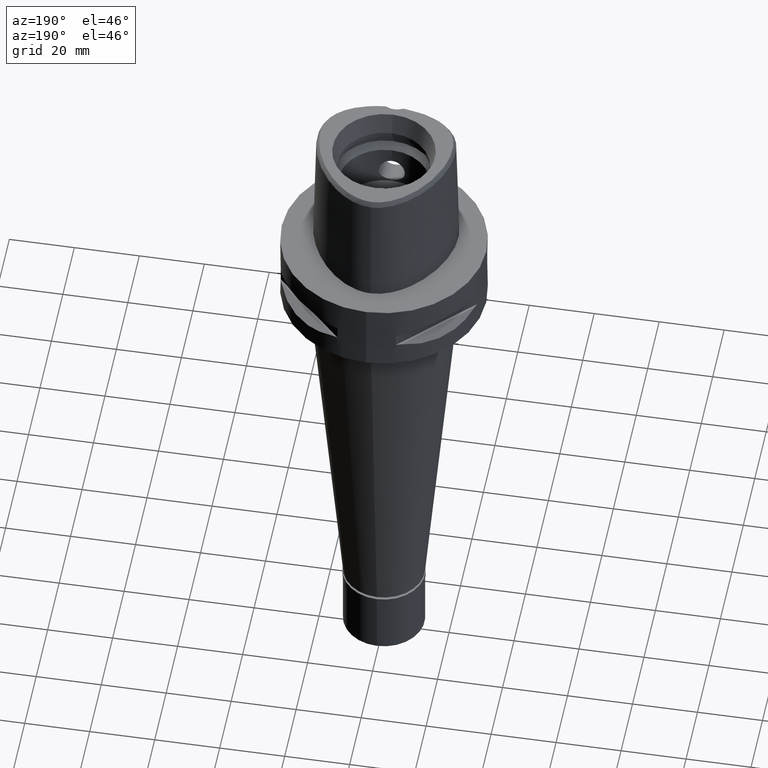
[diagram: clean part render]
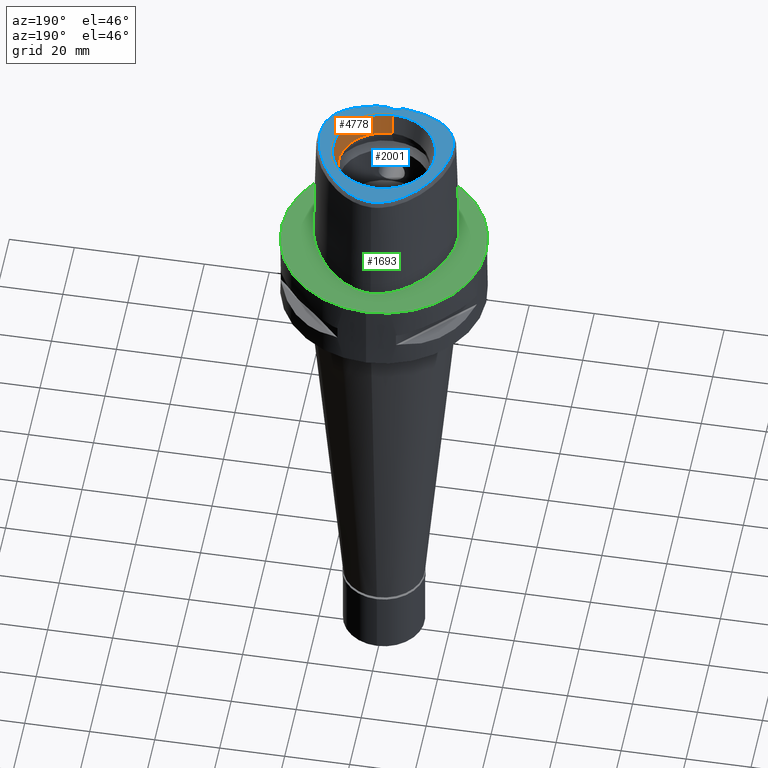
[diagram: same view with three faces highlighted in distinct colors, each labeled with its STEP entity id]
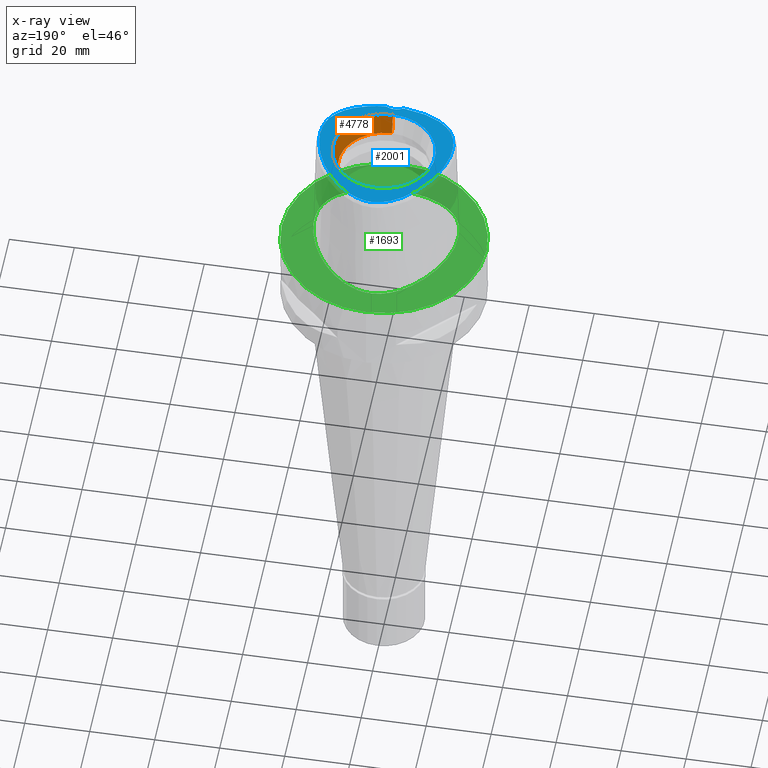
[diagram: x-ray of the same camera — body ghosted, the three highlighted faces saturated]
A machine part, auxiliary view with three faces highlighted in distinct colors.
The next image is the same camera in x-ray (body ghosted, the three faces saturated) — at least one of them is partly hidden behind the body in this view.
Their STEP definitions:

[orange] entity #4778 — the highlighted conical surface has half-angle 15 deg.
#72 = DIRECTION ( 'NONE',  ( 0.0000000000000000000, -1.000000000000000000, 0.0000000000000000000 ) ) ;
#218 = FACE_OUTER_BOUND ( 'NONE', #1684, .T. ) ;
#444 = VECTOR ( 'NONE', #4712, 1000.000000000000000 ) ;
#458 = CARTESIAN_POINT ( 'NONE',  ( 0.0000000000000000000, -14.00000000000000000, 31.60000000000000142 ) ) ;
#551 = AXIS2_PLACEMENT_3D ( 'NONE', #2851, #4417, #72 ) ;
#674 = LINE ( 'NONE', #3452, #1623 ) ;
#691 = ORIENTED_EDGE ( 'NONE', *, *, #4613, .F. ) ;
#894 = CARTESIAN_POINT ( 'NONE',  ( 0.0000000000000000000, -15.71487483155999776, 38.00000000000000000 ) ) ;
#1002 = DIRECTION ( 'NONE',  ( 0.0000000000000000000, 0.0000000000000000000, 1.000000000000000000 ) ) ;
#1312 = DIRECTION ( 'NONE',  ( 0.0000000000000000000, 1.000000000000000000, 0.0000000000000000000 ) ) ;
#1359 = VERTEX_POINT ( 'NONE', #894 ) ;
#1623 = VECTOR ( 'NONE', #2976, 1000.000000000000000 ) ;
#1667 = EDGE_CURVE ( 'NONE', #4230, #1359, #3543, .T. ) ;
#1684 = EDGE_LOOP ( 'NONE', ( #691, #2555, #4118, #2300 ) ) ;
#2189 = CONICAL_SURFACE ( 'NONE', #4157, 14.85743741577999977, 0.2617993877991000029 ) ;
#2276 = CIRCLE ( 'NONE', #551, 15.71487483155999776 ) ;
#2300 = ORIENTED_EDGE ( 'NONE', *, *, #4504, .T. ) ;
#2555 = ORIENTED_EDGE ( 'NONE', *, *, #3997, .F. ) ;
#2632 = VERTEX_POINT ( 'NONE', #3233 ) ;
#2851 = CARTESIAN_POINT ( 'NONE',  ( 0.0000000000000000000, 0.0000000000000000000, 38.00000000000000000 ) ) ;
#2884 = DIRECTION ( 'NONE',  ( 0.0000000000000000000, 0.0000000000000000000, 1.000000000000000000 ) ) ;
#2976 = DIRECTION ( 'NONE',  ( 0.0000000000000000000, 0.2588190451025869088, 0.9659258262890505486 ) ) ;
#3233 = CARTESIAN_POINT ( 'NONE',  ( 0.0000000000000000000, 14.00000000000000000, 31.60000000000000142 ) ) ;
#3452 = CARTESIAN_POINT ( 'NONE',  ( 0.0000000000000000000, 14.00000000000000000, 31.60000000000000142 ) ) ;
#3497 = CARTESIAN_POINT ( 'NONE',  ( 0.0000000000000000000, 15.71487483155999776, 38.00000000000000000 ) ) ;
#3500 = CIRCLE ( 'NONE', #3982, 14.00000000000000000 ) ;
#3543 = LINE ( 'NONE', #458, #444 ) ;
#3713 = CARTESIAN_POINT ( 'NONE',  ( 0.0000000000000000000, 0.0000000000000000000, 34.79999999999999716 ) ) ;
#3982 = AXIS2_PLACEMENT_3D ( 'NONE', #4500, #2884, #4445 ) ;
#3997 = EDGE_CURVE ( 'NONE', #4230, #2632, #3500, .T. ) ;
#4118 = ORIENTED_EDGE ( 'NONE', *, *, #1667, .T. ) ;
#4157 = AXIS2_PLACEMENT_3D ( 'NONE', #3713, #1002, #1312 ) ;
#4230 = VERTEX_POINT ( 'NONE', #4337 ) ;
#4337 = CARTESIAN_POINT ( 'NONE',  ( 0.0000000000000000000, -14.00000000000000000, 31.60000000000000142 ) ) ;
#4417 = DIRECTION ( 'NONE',  ( 0.0000000000000000000, 0.0000000000000000000, 1.000000000000000000 ) ) ;
#4445 = DIRECTION ( 'NONE',  ( 0.0000000000000000000, -1.000000000000000000, 0.0000000000000000000 ) ) ;
#4500 = CARTESIAN_POINT ( 'NONE',  ( 0.0000000000000000000, 0.0000000000000000000, 31.60000000000000142 ) ) ;
#4504 = EDGE_CURVE ( 'NONE', #1359, #4696, #2276, .T. ) ;
#4613 = EDGE_CURVE ( 'NONE', #2632, #4696, #674, .T. ) ;
#4696 = VERTEX_POINT ( 'NONE', #3497 ) ;
#4712 = DIRECTION ( 'NONE',  ( 0.0000000000000000000, -0.2588190451025869088, 0.9659258262890505486 ) ) ;
#4778 = ADVANCED_FACE ( 'NONE', ( #218 ), #2189, .F. ) ;

[blue] entity #2001 — the highlighted planar face has unit normal (0, 0, 1).
#72 = DIRECTION ( 'NONE',  ( 0.0000000000000000000, -1.000000000000000000, 0.0000000000000000000 ) ) ;
#101 = CARTESIAN_POINT ( 'NONE',  ( 18.24247239569092471, 5.672548708072187473, 37.99999999999619149 ) ) ;
#110 = CARTESIAN_POINT ( 'NONE',  ( -16.93638123745406077, -13.22593246128545630, 37.99999999999671019 ) ) ;
#130 = CARTESIAN_POINT ( 'NONE',  ( 20.15982952132462813, -1.007721426051242819, 37.99999999999747047 ) ) ;
#139 = CARTESIAN_POINT ( 'NONE',  ( -19.78262210840362556, -8.543146992553202423, 37.99999999999734968 ) ) ;
#156 = CARTESIAN_POINT ( 'NONE',  ( 6.760281394351103756, 19.65404668909490482, 37.99999999999167244 ) ) ;
#178 = CARTESIAN_POINT ( 'NONE',  ( 18.79595068776008659, 4.257753965102074822, 37.99999999999908340 ) ) ;
#186 = CARTESIAN_POINT ( 'NONE',  ( -12.37132652998045224, -16.34104299088187418, 37.99999999999624833 ) ) ;
#239 = CARTESIAN_POINT ( 'NONE',  ( 8.936919536467623715, -17.64796721715473637, 37.99999999999688072 ) ) ;
#262 = CARTESIAN_POINT ( 'NONE',  ( 12.37622418509977607, -16.33871033286400731, 37.99999999999524647 ) ) ;
#316 = CARTESIAN_POINT ( 'NONE',  ( 16.36283630828176427, -13.76236604535021080, 37.99999999999384670 ) ) ;
#336 = CARTESIAN_POINT ( 'NONE',  ( 13.33890749496066874, -15.84912955619985375, 37.99999999998944133 ) ) ;
#368 = CARTESIAN_POINT ( 'NONE',  ( -3.470944899555000168E-11, 21.68728795390000030, 38.00000000000000000 ) ) ;
#480 = CARTESIAN_POINT ( 'NONE',  ( -19.94188961899993373, 0.2242544969879445849, 37.99999999999830180 ) ) ;
#504 = CARTESIAN_POINT ( 'NONE',  ( -15.71788912669138227, -14.29843101566616426, 37.99999999999536016 ) ) ;
#518 = ORIENTED_EDGE ( 'NONE', *, *, #3741, .F. ) ;
#523 = CARTESIAN_POINT ( 'NONE',  ( 19.98468477323114101, -7.807876343103617778, 37.99999999999447198 ) ) ;
#551 = AXIS2_PLACEMENT_3D ( 'NONE', #2851, #4417, #72 ) ;
#553 = CARTESIAN_POINT ( 'NONE',  ( 9.524842839488803392, 17.70516372195005772, 38.00000000000051159 ) ) ;
#602 = CARTESIAN_POINT ( 'NONE',  ( 8.578848111817329425, 18.44609846598946490, 37.99999999999239009 ) ) ;
#638 = CARTESIAN_POINT ( 'NONE',  ( -18.79649882725017562, 4.256255933891879728, 37.99999999999676703 ) ) ;
#663 = CARTESIAN_POINT ( 'NONE',  ( -6.759433772717773792, 19.65454812513074856, 37.99999999999470646 ) ) ;
#681 = EDGE_CURVE ( 'NONE', #4156, #3818, #4456, .T. ) ;
#687 = CARTESIAN_POINT ( 'NONE',  ( -15.24692477332630602, 11.25717358966748982, 38.00000000000113687 ) ) ;
#711 = CARTESIAN_POINT ( 'NONE',  ( 2.682287482605000051, -18.78036330228999873, 38.00000000000000000 ) ) ;
#712 = CARTESIAN_POINT ( 'NONE',  ( -14.34402387965960735, 12.54761970512866576, 37.99999999999872102 ) ) ;
#725 = AXIS2_PLACEMENT_3D ( 'NONE', #2303, #1497, #4635 ) ;
#805 = FACE_OUTER_BOUND ( 'NONE', #2849, .T. ) ;
#862 = CARTESIAN_POINT ( 'NONE',  ( -2.841965291530478943, -18.76757795571766607, 37.99999999999904787 ) ) ;
#884 = CARTESIAN_POINT ( 'NONE',  ( 5.059249257021043000, 20.53399274679303943, 37.99999999999518252 ) ) ;
#893 = CARTESIAN_POINT ( 'NONE',  ( -13.33457781970404277, -15.85148397417786370, 37.99999999999862155 ) ) ;
#894 = CARTESIAN_POINT ( 'NONE',  ( 0.0000000000000000000, -15.71487483155999776, 38.00000000000000000 ) ) ;
#913 = CARTESIAN_POINT ( 'NONE',  ( 16.88599964843677981, 8.518708218769981855, 37.99999999999564437 ) ) ;
#920 = CARTESIAN_POINT ( 'NONE',  ( -8.930096025510932733, -17.65000298921350108, 37.99999999999689493 ) ) ;
#937 = CARTESIAN_POINT ( 'NONE',  ( 4.255661039972541637, 20.86618068830059869, 37.99999999999217692 ) ) ;
#1061 = DIRECTION ( 'NONE',  ( 1.000000000000000000, 0.0000000000000000000, 0.0000000000000000000 ) ) ;
#1084 = CARTESIAN_POINT ( 'NONE',  ( -3.481017203589169995, 21.13509756881934720, 37.99999999999624833 ) ) ;
#1122 = CARTESIAN_POINT ( 'NONE',  ( 7.606839420237927918, -18.00827588386602329, 37.99999999999727152 ) ) ;
#1208 = AXIS2_PLACEMENT_3D ( 'NONE', #1248, #3531, #3940 ) ;
#1245 = ORIENTED_EDGE ( 'NONE', *, *, #681, .F. ) ;
#1248 = CARTESIAN_POINT ( 'NONE',  ( 0.0000000000000000000, 0.0000000000000000000, 38.00000000000000000 ) ) ;
#1274 = CARTESIAN_POINT ( 'NONE',  ( 12.44125753246899002, 14.89118158853329987, 37.99999999999514699 ) ) ;
#1283 = CARTESIAN_POINT ( 'NONE',  ( -17.91005512243642173, -12.13778127739842283, 38.00000000000100187 ) ) ;
#1338 = CARTESIAN_POINT ( 'NONE',  ( -20.36398648679959678, -5.278470727085297298, 37.99999999999286615 ) ) ;
#1359 = VERTEX_POINT ( 'NONE', #894 ) ;
#1392 = CARTESIAN_POINT ( 'NONE',  ( -18.31748213707719231, -11.58791794387901497, 37.99999999999039346 ) ) ;
#1409 = CARTESIAN_POINT ( 'NONE',  ( 2.845098933833624333, -18.76733062685930875, 38.00000000000083844 ) ) ;
#1418 = CARTESIAN_POINT ( 'NONE',  ( -13.40435640711599419, 13.76268382997043638, 37.99999999999911893 ) ) ;
#1460 = CARTESIAN_POINT ( 'NONE',  ( 15.72078707640146078, -14.29615620309181345, 37.99999999999732125 ) ) ;
#1485 = B_SPLINE_CURVE_WITH_KNOTS ( 'NONE', 3,
 ( #3735, #4090, #2551, #4059, #3275, #4854, #4007, #937, #884, #1793, #156, #4115, #602, #553, #4771, #2164, #1274, #4393, #2497, #2065, #2907, #913, #3626, #101, #178, #3242, #3685, #1742, #130, #2138, #3706, #1765, #1687, #4804, #2857, #523, #2089, #3656, #1510, #2955, #4216, #3814, #3013, #2677, #3433, #316, #1460, #3455, #3058, #336, #262, #3863, #4625, #239, #1122, #3356, #4902, #1490, #1409, #4521 ),
 .UNSPECIFIED., .F., .F.,
 ( 4, 1, 1, 1, 1, 1, 1, 1, 1, 1, 1, 1, 1, 1, 1, 1, 1, 1, 1, 1, 1, 1, 1, 1, 1, 1, 1, 1, 1, 1, 1, 1, 1, 1, 1, 1, 1, 1, 1, 1, 1, 1, 1, 1, 1, 1, 1, 1, 1, 1, 1, 1, 1, 1, 1, 1, 1, 4 ),
 ( 0.0000000000000000000, 0.01775854187129999318, 0.03551708374169992855, 0.05327562561200005486, 0.07103416748239999023, 0.08879270935270000553, 0.1065512512231000519, 0.1243097930933999562, 0.1420683349638000026, 0.1598268768341000179, 0.1775854187044000332, 0.1953439605747999686, 0.2131025024450999839, 0.2308610443155000302, 0.2486195861857999345, 0.2663781280563000120, 0.2841366699266000273, 0.3018952117970000737, 0.3196537536672999780, 0.3374122955377000244, 0.3551708374080000397, 0.3729293792782999439, 0.3906879211486999903, 0.4084464630190000056, 0.4262050048894000520, 0.4439635467596999563, 0.4617220886301000027, 0.4794806305004000180, 0.4972391723707999533, 0.5149977142410999686, 0.5327562561113999839, 0.5505147979818000303, 0.5682733398521000456, 0.5860318817224999810, 0.6037904235927999963, 0.6215489654632000427, 0.6393075073334999470, 0.6570660492038999934, 0.6748245910742000087, 0.6925831329445000240, 0.7103416748149000703, 0.7281002166851999746, 0.7458587585556000210, 0.7636173004259000363, 0.7813758422962999717, 0.7991343841665999870, 0.8168929260370000334, 0.8346514679073000487, 0.8524100097776999840, 0.8701685516479999993, 0.8879270935183000146, 0.9056856353886799660, 0.9234441772589799813, 0.9412027191293600437, 0.9589612609997000270, 0.9767198028700500023, 0.9944783447403919840, 1.000000000000000000 ),
 .UNSPECIFIED. ) ;
#1490 = CARTESIAN_POINT ( 'NONE',  ( 3.529311563348732861, -18.70747079909843791, 37.99999999999798206 ) ) ;
#1497 = DIRECTION ( 'NONE',  ( 0.0000000000000000000, 0.0000000000000000000, 1.000000000000000000 ) ) ;
#1498 = CARTESIAN_POINT ( 'NONE',  ( -16.09805956313752873, 9.908742513516648032, 38.00000000000394351 ) ) ;
#1510 = CARTESIAN_POINT ( 'NONE',  ( 19.28677546796935260, -9.867757137506103504, 37.99999999999898392 ) ) ;
#1518 = CARTESIAN_POINT ( 'NONE',  ( -3.470944899555000168E-11, 21.68728795390000030, 38.00000000000000000 ) ) ;
#1550 = EDGE_LOOP ( 'NONE', ( #3179, #518 ) ) ;
#1668 = CARTESIAN_POINT ( 'NONE',  ( -2.682279906006999948, -18.78035848609999903, 38.00000000000000000 ) ) ;
#1687 = CARTESIAN_POINT ( 'NONE',  ( 20.36412151361153278, -5.276385427453949895, 37.99999999999699440 ) ) ;
#1697 = CARTESIAN_POINT ( 'NONE',  ( -15.00295592774118703, -14.82617991125914436, 38.00000000000090239 ) ) ;
#1726 = CARTESIAN_POINT ( 'NONE',  ( -19.98419490692019451, -7.809898894996448959, 37.99999999999891287 ) ) ;
#1742 = CARTESIAN_POINT ( 'NONE',  ( 19.94150023628350965, 0.2261566111947020119, 38.00000000000139977 ) ) ;
#1747 = CARTESIAN_POINT ( 'NONE',  ( -20.16012968311559916, -1.009698174524271463, 38.00000000000008527 ) ) ;
#1765 = CARTESIAN_POINT ( 'NONE',  ( 20.40062138795079250, -4.309334958867564680, 37.99999999999666755 ) ) ;
#1773 = CARTESIAN_POINT ( 'NONE',  ( -16.36032397154128404, -13.76458520345041592, 38.00000000000122213 ) ) ;
#1778 = AXIS2_PLACEMENT_3D ( 'NONE', #4693, #2994, #1061 ) ;
#1793 = CARTESIAN_POINT ( 'NONE',  ( 5.894487344451103894, 20.13186406532397754, 37.99999999999202771 ) ) ;
#1801 = CARTESIAN_POINT ( 'NONE',  ( -18.24302769442441274, 5.671232572959030271, 37.99999999999246114 ) ) ;
#1901 = CARTESIAN_POINT ( 'NONE',  ( -11.46564124494531711, 15.92741340513346238, 37.99999999999322142 ) ) ;
#2001 = ADVANCED_FACE ( 'NONE', ( #805, #2371 ), #4938, .T. ) ;
#2065 = CARTESIAN_POINT ( 'NONE',  ( 15.24661770199586464, 11.25762885478114050, 37.99999999999552358 ) ) ;
#2089 = CARTESIAN_POINT ( 'NONE',  ( 19.78323211893058797, -8.541156231035779811, 37.99999999999558042 ) ) ;
#2096 = CARTESIAN_POINT ( 'NONE',  ( -19.54919922641935059, -9.228169790568554021, 38.00000000000168399 ) ) ;
#2138 = CARTESIAN_POINT ( 'NONE',  ( 20.30478359881717054, -2.175347700950892360, 37.99999999999432276 ) ) ;
#2146 = CARTESIAN_POINT ( 'NONE',  ( -3.522896839654425793, -18.70811514173471224, 37.99999999999911893 ) ) ;
#2164 = CARTESIAN_POINT ( 'NONE',  ( 11.46587147799979967, 15.92717600803569766, 37.99999999999850786 ) ) ;
#2226 = CARTESIAN_POINT ( 'NONE',  ( -4.254559144977804408, 20.86660163697336756, 37.99999999999258193 ) ) ;
#2271 = CARTESIAN_POINT ( 'NONE',  ( -2.682279906006999948, -18.78035848609999903, 38.00000000000000000 ) ) ;
#2276 = CIRCLE ( 'NONE', #551, 15.71487483155999776 ) ;
#2282 = CARTESIAN_POINT ( 'NONE',  ( -1.323674540693986934, 21.61098849315753156, 37.99999999999862865 ) ) ;
#2303 = CARTESIAN_POINT ( 'NONE',  ( 0.0000000000000000000, -23.00000000000000000, 38.00000000000000000 ) ) ;
#2371 = FACE_BOUND ( 'NONE', #1550, .T. ) ;
#2457 = CARTESIAN_POINT ( 'NONE',  ( -14.21001600787819008, -15.34519100085994125, 37.99999999999617017 ) ) ;
#2481 = CARTESIAN_POINT ( 'NONE',  ( -10.17136073855346545, -17.24644253470329858, 37.99999999999880629 ) ) ;
#2497 = CARTESIAN_POINT ( 'NONE',  ( 14.34383722811896966, 12.54786717290527598, 37.99999999999081979 ) ) ;
#2551 = CARTESIAN_POINT ( 'NONE',  ( 0.6513209347956235851, 21.67370899611534796, 37.99999999999849365 ) ) ;
#2636 = CARTESIAN_POINT ( 'NONE',  ( -19.26324493738903243, 2.868570891456895922, 38.00000000000295586 ) ) ;
#2677 = CARTESIAN_POINT ( 'NONE',  ( 17.45306278053536531, -12.68156296993537424, 37.99999999999907629 ) ) ;
#2837 = CARTESIAN_POINT ( 'NONE',  ( -20.40060226223201312, -4.311417605381156370, 37.99999999999747757 ) ) ;
#2849 = EDGE_LOOP ( 'NONE', ( #5042, #1245, #4032 ) ) ;
#2851 = CARTESIAN_POINT ( 'NONE',  ( 0.0000000000000000000, 0.0000000000000000000, 38.00000000000000000 ) ) ;
#2857 = CARTESIAN_POINT ( 'NONE',  ( 20.15127154947170851, -7.022178451341443584, 37.99999999999717915 ) ) ;
#2890 = CARTESIAN_POINT ( 'NONE',  ( -20.38301517462857504, -3.278344853327745945, 37.99999999999759126 ) ) ;
#2907 = CARTESIAN_POINT ( 'NONE',  ( 16.09765529146232765, 9.909410920134149592, 37.99999999999081979 ) ) ;
#2955 = CARTESIAN_POINT ( 'NONE',  ( 18.99619228226061907, -10.46780014453388929, 37.99999999999140954 ) ) ;
#2994 = DIRECTION ( 'NONE',  ( 0.0000000000000000000, 0.0000000000000000000, 1.000000000000000000 ) ) ;
#3013 = CARTESIAN_POINT ( 'NONE',  ( 17.91165267839488706, -12.13575389397731463, 37.99999999999925393 ) ) ;
#3022 = CARTESIAN_POINT ( 'NONE',  ( -2.017025177696600391, 21.50280829368316304, 37.99999999999235456 ) ) ;
#3045 = CARTESIAN_POINT ( 'NONE',  ( -17.60426951086757086, 7.098774535282131204, 37.99999999999466382 ) ) ;
#3058 = CARTESIAN_POINT ( 'NONE',  ( 14.21382211799532769, -15.34284287400497249, 37.99999999999270983 ) ) ;
#3179 = ORIENTED_EDGE ( 'NONE', *, *, #4504, .F. ) ;
#3219 = CARTESIAN_POINT ( 'NONE',  ( -7.599370508970685556, -18.01010694911881416, 37.99999999999904077 ) ) ;
#3242 = CARTESIAN_POINT ( 'NONE',  ( 19.26272899268245808, 2.870227893749741188, 37.99999999999195666 ) ) ;
#3275 = CARTESIAN_POINT ( 'NONE',  ( 2.018320379028650358, 21.50256508436690694, 37.99999999999636913 ) ) ;
#3283 = CARTESIAN_POINT ( 'NONE',  ( -20.27898581532058486, -6.181921586189946360, 37.99999999999332090 ) ) ;
#3356 = CARTESIAN_POINT ( 'NONE',  ( 6.196495988003965394, -18.31673538864990292, 37.99999999999596412 ) ) ;
#3433 = CARTESIAN_POINT ( 'NONE',  ( 16.93855157778245513, -13.22377441789510755, 37.99999999999300115 ) ) ;
#3455 = CARTESIAN_POINT ( 'NONE',  ( 15.00628712263418052, -14.82385870794884575, 37.99999999998904343 ) ) ;
#3462 = CARTESIAN_POINT ( 'NONE',  ( -19.64434054693242260, 1.520253387636336884, 37.99999999999374722 ) ) ;
#3497 = CARTESIAN_POINT ( 'NONE',  ( 0.0000000000000000000, 15.71487483155999776, 38.00000000000000000 ) ) ;
#3531 = DIRECTION ( 'NONE',  ( 0.0000000000000000000, 0.0000000000000000000, 1.000000000000000000 ) ) ;
#3626 = CARTESIAN_POINT ( 'NONE',  ( 17.60373714028488124, 7.099883643193305005, 37.99999999999548805 ) ) ;
#3656 = CARTESIAN_POINT ( 'NONE',  ( 19.54993126781708668, -9.226212439886362304, 37.99999999999739941 ) ) ;
#3665 = CARTESIAN_POINT ( 'NONE',  ( -18.99520880204540063, -10.46968343926547007, 37.99999999999959499 ) ) ;
#3685 = CARTESIAN_POINT ( 'NONE',  ( 19.64387775268426850, 1.522048414458383681, 37.99999999999595701 ) ) ;
#3690 = CARTESIAN_POINT ( 'NONE',  ( -4.706994425064703336, -18.56721852572777109, 38.00000000000030553 ) ) ;
#3706 = CARTESIAN_POINT ( 'NONE',  ( 20.38292172607865638, -3.276278498261484984, 37.99999999999250377 ) ) ;
#3714 = CARTESIAN_POINT ( 'NONE',  ( -11.31790883121108493, -16.80796958613634118, 37.99999999999374722 ) ) ;
#3735 = CARTESIAN_POINT ( 'NONE',  ( -3.470944899555000168E-11, 21.68728795390000030, 38.00000000000000000 ) ) ;
#3741 = EDGE_CURVE ( 'NONE', #4696, #1359, #4308, .T. ) ;
#3814 = CARTESIAN_POINT ( 'NONE',  ( 18.31883910943007265, -11.58595831188332426, 37.99999999999460698 ) ) ;
#3818 = VERTEX_POINT ( 'NONE', #368 ) ;
#3847 = CARTESIAN_POINT ( 'NONE',  ( -0.2181979014508986237, 21.68728795389138142, 37.99999999999782574 ) ) ;
#3863 = CARTESIAN_POINT ( 'NONE',  ( 11.32341394162495973, -16.80569392801021422, 37.99999999998996003 ) ) ;
#3940 = DIRECTION ( 'NONE',  ( 0.0000000000000000000, 1.000000000000000000, 0.0000000000000000000 ) ) ;
#3991 = CARTESIAN_POINT ( 'NONE',  ( -20.15090095364696410, -7.024227649787776251, 38.00000000000090949 ) ) ;
#4002 = EDGE_CURVE ( 'NONE', #3818, #5017, #1485, .T. ) ;
#4007 = CARTESIAN_POINT ( 'NONE',  ( 3.482188079160187133, 21.13472718027890096, 37.99999999999627676 ) ) ;
#4032 = ORIENTED_EDGE ( 'NONE', *, *, #4971, .F. ) ;
#4041 = CARTESIAN_POINT ( 'NONE',  ( -18.67608643721791140, -11.03561202290790888, 37.99999999999612754 ) ) ;
#4059 = CARTESIAN_POINT ( 'NONE',  ( 1.325020189553241190, 21.61081414409234824, 37.99999999999698019 ) ) ;
#4090 = CARTESIAN_POINT ( 'NONE',  ( 0.2185816947241346064, 21.68728795389703734, 38.00000000000115108 ) ) ;
#4115 = CARTESIAN_POINT ( 'NONE',  ( 7.655962789343690567, 19.09402979100069331, 37.99999999999992895 ) ) ;
#4123 = CARTESIAN_POINT ( 'NONE',  ( -8.578220530114215592, 18.44656747109013395, 38.00000000000070344 ) ) ;
#4150 = CARTESIAN_POINT ( 'NONE',  ( -7.655222869372592776, 19.09452359226475693, 37.99999999999423039 ) ) ;
#4156 = VERTEX_POINT ( 'NONE', #2271 ) ;
#4178 = CARTESIAN_POINT ( 'NONE',  ( -12.44116897271322841, 14.89128547409631764, 37.99999999999951683 ) ) ;
#4216 = CARTESIAN_POINT ( 'NONE',  ( 18.67722910598423880, -11.03372143228493307, 37.99999999999921840 ) ) ;
#4225 = CARTESIAN_POINT ( 'NONE',  ( -16.88647904405180356, 8.517821442303537438, 37.99999999999948841 ) ) ;
#4308 = CIRCLE ( 'NONE', #1208, 15.71487483155999776 ) ;
#4393 = CARTESIAN_POINT ( 'NONE',  ( 13.40430406168709254, 13.76274261013431399, 37.99999999999693756 ) ) ;
#4399 = CIRCLE ( 'NONE', #725, 5.000000000000000888 ) ;
#4417 = DIRECTION ( 'NONE',  ( 0.0000000000000000000, 0.0000000000000000000, 1.000000000000000000 ) ) ;
#4452 = CARTESIAN_POINT ( 'NONE',  ( -20.30498420086750144, -2.177378896257841756, 38.00000000000299138 ) ) ;
#4456 = B_SPLINE_CURVE_WITH_KNOTS ( 'NONE', 3,
 ( #1668, #862, #2146, #3690, #4837, #3219, #920, #2481, #3714, #186, #893, #2457, #1697, #504, #1773, #110, #4781, #1283, #1392, #4041, #3665, #4813, #2096, #139, #1726, #3991, #3283, #1338, #2837, #2890, #4452, #1747, #480, #3462, #2636, #638, #1801, #3045, #4225, #1498, #687, #712, #1418, #4178, #1901, #4588, #4611, #4123, #4150, #663, #4912, #4529, #2226, #1084, #4559, #3022, #2282, #5013, #3847, #1518 ),
 .UNSPECIFIED., .F., .F.,
 ( 4, 1, 1, 1, 1, 1, 1, 1, 1, 1, 1, 1, 1, 1, 1, 1, 1, 1, 1, 1, 1, 1, 1, 1, 1, 1, 1, 1, 1, 1, 1, 1, 1, 1, 1, 1, 1, 1, 1, 1, 1, 1, 1, 1, 1, 1, 1, 1, 1, 1, 1, 1, 1, 1, 1, 1, 1, 4 ),
 ( 0.0000000000000000000, 0.005420919554200098744, 0.02318126027639999531, 0.04094160099879995407, 0.05870194172099996166, 0.07646228244330000035, 0.09422262316550000794, 0.1119829638877999356, 0.1297433046099999432, 0.1475036453321999508, 0.1652639860544999895, 0.1830243267768000281, 0.2007846674991000668, 0.2185450082212999634, 0.2363053489436000021, 0.2540656896658000097, 0.2718260303881000484, 0.2895863711103000560, 0.3073467118325999836, 0.3251070525547999912, 0.3428673932771000299, 0.3606277339994000686, 0.3783880747216000762, 0.3961484154438998928, 0.4139087561661000114, 0.4316690968884000501, 0.4494294376106000577, 0.4671897783328999854, 0.4849501190552000240, 0.5027104597774000316, 0.5204708004996999593, 0.5382311412219000779, 0.5559914819442000056, 0.5737518226664000132, 0.5915121633886999408, 0.6092725041108999484, 0.6270328448331999871, 0.6447931855555000258, 0.6625535262777000334, 0.6803138669999999610, 0.6980742077221999686, 0.7158345484445000073, 0.7335948891667000149, 0.7513552298890000536, 0.7691155706112000612, 0.7868759113336000199, 0.8046362520558000275, 0.8223965927780999552, 0.8401569335002999628, 0.8579172742224999704, 0.8756776149448000091, 0.8934379556670000166, 0.9111982963893099363, 0.9289586371115700070, 0.9467189778338299666, 0.9644793185560800453, 0.9822396592783400049, 1.000000000000000000 ),
 .UNSPECIFIED. ) ;
#4504 = EDGE_CURVE ( 'NONE', #1359, #4696, #2276, .T. ) ;
#4521 = CARTESIAN_POINT ( 'NONE',  ( 2.682287482605000051, -18.78036330228999873, 38.00000000000000000 ) ) ;
#4529 = CARTESIAN_POINT ( 'NONE',  ( -5.058220461390035894, 20.53445508814773035, 37.99999999999587175 ) ) ;
#4559 = CARTESIAN_POINT ( 'NONE',  ( -2.735698246183850380, 21.34559102902379024, 38.00000000000211031 ) ) ;
#4588 = CARTESIAN_POINT ( 'NONE',  ( -10.48962422760020630, 16.86631853279036619, 38.00000000000133582 ) ) ;
#4611 = CARTESIAN_POINT ( 'NONE',  ( -9.524337278002592555, 17.70558492631501224, 37.99999999999928946 ) ) ;
#4625 = CARTESIAN_POINT ( 'NONE',  ( 10.17751632998587041, -17.24426134459005411, 37.99999999999451461 ) ) ;
#4635 = DIRECTION ( 'NONE',  ( 0.0000000000000000000, 1.000000000000000000, 0.0000000000000000000 ) ) ;
#4693 = CARTESIAN_POINT ( 'NONE',  ( 0.0000000000000000000, 0.0000000000000000000, 38.00000000000000000 ) ) ;
#4696 = VERTEX_POINT ( 'NONE', #3497 ) ;
#4771 = CARTESIAN_POINT ( 'NONE',  ( 10.48999540690957133, 16.86597469869780141, 37.99999999999831601 ) ) ;
#4781 = CARTESIAN_POINT ( 'NONE',  ( -17.45119705494360218, -12.68365517585548119, 37.99999999999595701 ) ) ;
#4804 = CARTESIAN_POINT ( 'NONE',  ( 20.27923816685477476, -6.179850483268344519, 38.00000000000135003 ) ) ;
#4813 = CARTESIAN_POINT ( 'NONE',  ( -19.28591707036917668, -9.869682450887703240, 37.99999999999452172 ) ) ;
#4837 = CARTESIAN_POINT ( 'NONE',  ( -6.188376196366984772, -18.31830638231234332, 37.99999999999222666 ) ) ;
#4854 = CARTESIAN_POINT ( 'NONE',  ( 2.736932690727028383, 21.34527940057188999, 37.99999999999503331 ) ) ;
#4902 = CARTESIAN_POINT ( 'NONE',  ( 4.715576077242181086, -18.56597918135122072, 37.99999999999054978 ) ) ;
#4912 = CARTESIAN_POINT ( 'NONE',  ( -5.893543501601847368, 20.13235399352019073, 37.99999999999846523 ) ) ;
#4938 = PLANE ( 'NONE',  #1778 ) ;
#4971 = EDGE_CURVE ( 'NONE', #5017, #4156, #4399, .T. ) ;
#5013 = CARTESIAN_POINT ( 'NONE',  ( -0.6498990081535728214, 21.67378274708380559, 37.99999999999636913 ) ) ;
#5017 = VERTEX_POINT ( 'NONE', #711 ) ;
#5042 = ORIENTED_EDGE ( 'NONE', *, *, #4002, .F. ) ;

[green] entity #1693 — the highlighted planar face has unit normal (0, 0, -1).
#22 = FACE_BOUND ( 'NONE', #734, .T. ) ;
#45 = CARTESIAN_POINT ( 'NONE',  ( 3.799139208486999594E-11, 23.47499999999000053, 6.972200594645999482E-14 ) ) ;
#120 = CARTESIAN_POINT ( 'NONE',  ( 5.098437017283536932, 22.52602539063039089, -8.944667923005411581E-16 ) ) ;
#247 = CARTESIAN_POINT ( 'NONE',  ( -22.05732878004381092, -6.847636724042352796, -1.481763286506274091E-06 ) ) ;
#431 = CARTESIAN_POINT ( 'NONE',  ( 7.571159434350728468, 21.31457031249556167, -8.944667923005411581E-16 ) ) ;
#488 = CARTESIAN_POINT ( 'NONE',  ( 10.74572891059364999, 19.17433593750017806, -8.944667923005411581E-16 ) ) ;
#559 = CARTESIAN_POINT ( 'NONE',  ( 3.799139208486999594E-11, 23.47499999999000053, 6.972200594645999482E-14 ) ) ;
#609 = CARTESIAN_POINT ( 'NONE',  ( -11.23259758000033592, -18.89324222251017460, -1.481763286506274091E-06 ) ) ;
#726 = CARTESIAN_POINT ( 'NONE',  ( -10.74572893454781664, 19.17433596602834811, -1.481763286506274091E-06 ) ) ;
#734 = EDGE_LOOP ( 'NONE', ( #4525, #2640 ) ) ;
#748 = CARTESIAN_POINT ( 'NONE',  ( -20.74942744383881177, 4.657187512630721393, -1.481763286506274091E-06 ) ) ;
#818 = DIRECTION ( 'NONE',  ( 0.0000000000000000000, 0.0000000000000000000, -1.000000000000000000 ) ) ;
#824 = CARTESIAN_POINT ( 'NONE',  ( 18.56841065141960812, -14.16937988280595739, -8.944667923005411581E-16 ) ) ;
#843 = CARTESIAN_POINT ( 'NONE',  ( 14.40795638958558200, 15.64093750000613348, -8.944667923005411581E-16 ) ) ;
#860 = CARTESIAN_POINT ( 'NONE',  ( -0.8548392449310183716, 23.47500003704267257, -1.481763286506274091E-06 ) ) ;
#873 = CARTESIAN_POINT ( 'NONE',  ( 14.67337964419943042, -17.21410156249768519, -8.944667923005411581E-16 ) ) ;
#943 = AXIS2_PLACEMENT_3D ( 'NONE', #1707, #1600, #1625 ) ;
#1040 = AXIS2_PLACEMENT_3D ( 'NONE', #2746, #1965, #3414 ) ;
#1136 = EDGE_CURVE ( 'NONE', #3573, #2296, #3641, .T. ) ;
#1241 = CARTESIAN_POINT ( 'NONE',  ( 22.05732874322270121, -6.847636718749270379, -8.944667923005411581E-16 ) ) ;
#1391 = CARTESIAN_POINT ( 'NONE',  ( -14.67337966258777726, -17.21410159478941893, -1.481763286506274091E-06 ) ) ;
#1530 = CARTESIAN_POINT ( 'NONE',  ( 3.799139208486999594E-11, 23.47499999999000053, 6.972200594645999482E-14 ) ) ;
#1600 = DIRECTION ( 'NONE',  ( 0.0000000000000000000, 0.0000000000000000000, -1.000000000000000000 ) ) ;
#1625 = DIRECTION ( 'NONE',  ( 0.0000000000000000000, -1.000000000000000000, 0.0000000000000000000 ) ) ;
#1677 = PLANE ( 'NONE',  #943 ) ;
#1693 = ADVANCED_FACE ( 'NONE', ( #3971, #22 ), #1677, .F. ) ;
#1707 = CARTESIAN_POINT ( 'NONE',  ( 0.0000000000000000000, 0.0000000000000000000, 0.0000000000000000000 ) ) ;
#1746 = CARTESIAN_POINT ( 'NONE',  ( -5.544119096468000877E-12, -20.67499999999999716, 7.264559324463998182E-14 ) ) ;
#1874 = CARTESIAN_POINT ( 'NONE',  ( 0.0000000000000000000, -31.50000000000000000, 0.0000000000000000000 ) ) ;
#1965 = DIRECTION ( 'NONE',  ( 0.0000000000000000000, 0.0000000000000000000, -1.000000000000000000 ) ) ;
#1979 = CARTESIAN_POINT ( 'NONE',  ( 0.0000000000000000000, 0.0000000000000000000, 0.0000000000000000000 ) ) ;
#2007 = CARTESIAN_POINT ( 'NONE',  ( 2.564517726975577006, 23.29328124999284455, -8.944667923005411581E-16 ) ) ;
#2011 = CARTESIAN_POINT ( 'NONE',  ( 0.0000000000000000000, 31.50000000000000000, 0.0000000000000000000 ) ) ;
#2030 = CARTESIAN_POINT ( 'NONE',  ( 19.64947365863864803, -12.82525390625422546, -8.944667923005411581E-16 ) ) ;
#2033 = EDGE_CURVE ( 'NONE', #2296, #3573, #3733, .T. ) ;
#2108 = CARTESIAN_POINT ( 'NONE',  ( 2.113823673067706910, -20.67499999999523652, -8.944667923005413553E-16 ) ) ;
#2202 = CARTESIAN_POINT ( 'NONE',  ( -16.95889174892666418, -15.67838870111572191, -1.481763286506274091E-06 ) ) ;
#2293 = CARTESIAN_POINT ( 'NONE',  ( -14.40795641804204763, 15.64093752403486803, -1.481763286506274091E-06 ) ) ;
#2296 = VERTEX_POINT ( 'NONE', #2011 ) ;
#2388 = CARTESIAN_POINT ( 'NONE',  ( 20.74942740880018377, 4.657187499999361435, -8.944667923005411581E-16 ) ) ;
#2438 = CARTESIAN_POINT ( 'NONE',  ( 16.95889172594020167, -15.67838867187442631, -8.944667923005411581E-16 ) ) ;
#2583 = CARTESIAN_POINT ( 'NONE',  ( -20.93173255601029581, -10.60431642134455643, -1.481763286506274091E-06 ) ) ;
#2611 = EDGE_CURVE ( 'NONE', #2700, #3305, #4025, .T. ) ;
#2640 = ORIENTED_EDGE ( 'NONE', *, *, #2611, .F. ) ;
#2674 = CARTESIAN_POINT ( 'NONE',  ( -5.098437031110420570, 22.52602542516752493, -1.481763286506274091E-06 ) ) ;
#2695 = CARTESIAN_POINT ( 'NONE',  ( -18.06826691750821468, 10.43171876862235337, -1.481763286506274091E-06 ) ) ;
#2700 = VERTEX_POINT ( 'NONE', #3726 ) ;
#2746 = CARTESIAN_POINT ( 'NONE',  ( 0.0000000000000000000, 0.0000000000000000000, 0.0000000000000000000 ) ) ;
#2913 = CARTESIAN_POINT ( 'NONE',  ( -21.55524829571977108, -8.996025401215728579, -1.481763286506274091E-06 ) ) ;
#3078 = CARTESIAN_POINT ( 'NONE',  ( -2.564517734571640784, 23.29328128647974694, -1.481763286506274091E-06 ) ) ;
#3084 = ORIENTED_EDGE ( 'NONE', *, *, #1136, .F. ) ;
#3177 = CARTESIAN_POINT ( 'NONE',  ( 20.34961798556402357, -11.74885742187094628, -8.944667923005411581E-16 ) ) ;
#3266 = CARTESIAN_POINT ( 'NONE',  ( 21.97832647786517768, -0.2810937499999933697, -8.944667923005411581E-16 ) ) ;
#3305 = VERTEX_POINT ( 'NONE', #559 ) ;
#3308 = CARTESIAN_POINT ( 'NONE',  ( -18.56841067840782600, -14.16937990837437056, -1.481763286506274091E-06 ) ) ;
#3387 = CARTESIAN_POINT ( 'NONE',  ( -19.64947368865378508, -12.82525392806513054, -1.481763286506274091E-06 ) ) ;
#3402 = AXIS2_PLACEMENT_3D ( 'NONE', #1979, #818, #3560 ) ;
#3414 = DIRECTION ( 'NONE',  ( 0.0000000000000000000, 1.000000000000000000, 0.0000000000000000000 ) ) ;
#3548 = EDGE_LOOP ( 'NONE', ( #4263, #3084 ) ) ;
#3560 = DIRECTION ( 'NONE',  ( 0.0000000000000000000, -1.000000000000000000, 0.0000000000000000000 ) ) ;
#3567 = CARTESIAN_POINT ( 'NONE',  ( 0.8548392423473497592, 23.47500000000153264, -8.944667923005411581E-16 ) ) ;
#3573 = VERTEX_POINT ( 'NONE', #1874 ) ;
#3641 = CIRCLE ( 'NONE', #3402, 31.50000000000000000 ) ;
#3646 = CARTESIAN_POINT ( 'NONE',  ( 6.341471019211046389, -20.29812500000096875, -8.944667923005411581E-16 ) ) ;
#3676 = CARTESIAN_POINT ( 'NONE',  ( 20.93173252212153201, -10.60431640624750749, -8.944667923005411581E-16 ) ) ;
#3726 = CARTESIAN_POINT ( 'NONE',  ( -5.544119096468000877E-12, -20.67499999999999716, 7.264559324463998182E-14 ) ) ;
#3733 = CIRCLE ( 'NONE', #1040, 31.50000000000000000 ) ;
#3772 = CARTESIAN_POINT ( 'NONE',  ( -22.24453911570619624, -4.100468749781970956, -1.481763286506274091E-06 ) ) ;
#3880 = CARTESIAN_POINT ( 'NONE',  ( -21.97832651454907804, -0.2810937435191986911, -1.481763286506274091E-06 ) ) ;
#3953 = CARTESIAN_POINT ( 'NONE',  ( 18.06826688527191038, 10.43171874999979565, -8.944667923005411581E-16 ) ) ;
#3971 = FACE_OUTER_BOUND ( 'NONE', #3548, .T. ) ;
#4000 = CARTESIAN_POINT ( 'NONE',  ( 21.55524826009576245, -8.996025390625073115, -8.944667923005411581E-16 ) ) ;
#4023 = CARTESIAN_POINT ( 'NONE',  ( -5.544119096468000877E-12, -20.67499999999999716, 7.264559324463998182E-14 ) ) ;
#4025 = B_SPLINE_CURVE_WITH_KNOTS ( 'NONE', 3,
 ( #4023, #2108, #3646, #4764, #873, #2438, #824, #2030, #3177, #3676, #4000, #1241, #4356, #3266, #2388, #3953, #843, #488, #431, #120, #2007, #3567, #45 ),
 .UNSPECIFIED., .F., .F.,
 ( 4, 1, 1, 1, 1, 1, 1, 1, 1, 1, 1, 1, 1, 1, 1, 1, 1, 1, 1, 1, 4 ),
 ( 0.0000000000000000000, 0.08333333333337000770, 0.1666666666667000196, 0.2083333333333000081, 0.2500000000000000000, 0.2916666666666999919, 0.3124999999998999689, 0.3333333333332000326, 0.3541666666666000163, 0.3749999999998999689, 0.4166666666666000163, 0.4583333333332000326, 0.4999999999998999689, 0.5833333333331000015, 0.6666666666664999852, 0.7499999999998000488, 0.8333333333329999704, 0.8749999999997000177, 0.9166666666664000651, 0.9583333333329999704, 1.000000000000000000 ),
 .UNSPECIFIED. ) ;
#4263 = ORIENTED_EDGE ( 'NONE', *, *, #2033, .F. ) ;
#4356 = CARTESIAN_POINT ( 'NONE',  ( 22.24453907855249213, -4.100468750000057838, -8.944667923005411581E-16 ) ) ;
#4429 = CARTESIAN_POINT ( 'NONE',  ( -6.341471025793724792, -20.29812503667274015, -1.481763286506274091E-06 ) ) ;
#4481 = CARTESIAN_POINT ( 'NONE',  ( -2.113823675265499080, -20.67500003704159184, -1.481763286506274091E-06 ) ) ;
#4506 = CARTESIAN_POINT ( 'NONE',  ( -20.34961801770727163, -11.74885744042521907, -1.481763286506274091E-06 ) ) ;
#4525 = ORIENTED_EDGE ( 'NONE', *, *, #4749, .F. ) ;
#4749 = EDGE_CURVE ( 'NONE', #3305, #2700, #4825, .T. ) ;
#4764 = CARTESIAN_POINT ( 'NONE',  ( 11.23259756727999736, -18.89324218749441187, -8.944667923005411581E-16 ) ) ;
#4780 = CARTESIAN_POINT ( 'NONE',  ( -7.571159453118252891, 21.31457034456921562, -1.481763286506274091E-06 ) ) ;
#4825 = B_SPLINE_CURVE_WITH_KNOTS ( 'NONE', 3,
 ( #1530, #860, #3078, #2674, #4780, #726, #2293, #2695, #748, #3880, #3772, #247, #2913, #2583, #4506, #3387, #3308, #2202, #1391, #609, #4429, #4481, #1746 ),
 .UNSPECIFIED., .F., .F.,
 ( 4, 1, 1, 1, 1, 1, 1, 1, 1, 1, 1, 1, 1, 1, 1, 1, 1, 1, 1, 1, 4 ),
 ( 0.0000000000000000000, 0.04166666666724999635, 0.08333333333387001052, 0.1250000000004999889, 0.1666666666672000086, 0.2500000000004000134, 0.3333333333335999904, 0.4166666666670000296, 0.5000000000001999512, 0.5416666666668999985, 0.5833333333333999837, 0.6250000000001000311, 0.6458333333333999837, 0.6666666666667000474, 0.6875000000000000000, 0.7083333333333000637, 0.7500000000000000000, 0.7916666666666000163, 0.8333333333332000326, 0.9166666666664999852, 1.000000000000000000 ),
 .UNSPECIFIED. ) ;